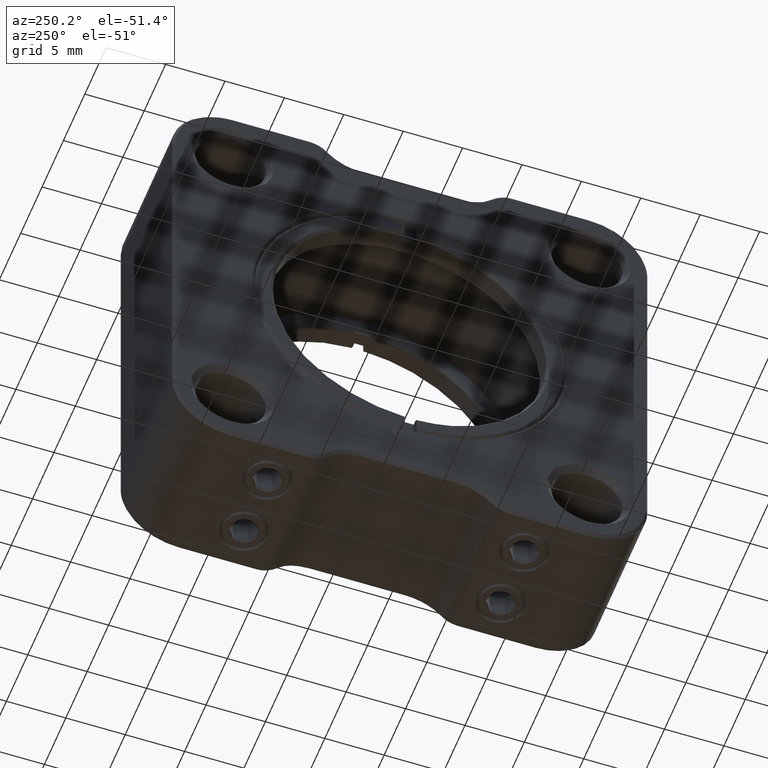
[diagram: clean part render]
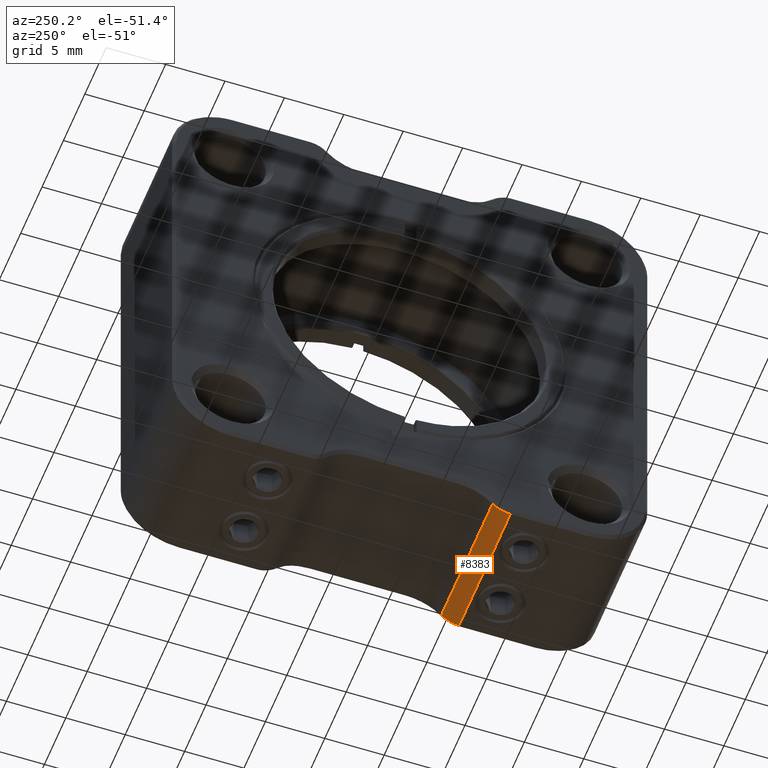
[diagram: same view with one face highlighted and labeled with its STEP entity id]
A machine part, auxiliary view. The second image highlights one B-rep face of the part: STEP entity #8383.
In plain terms, the highlighted face is a freeform B-spline surface patch.
Its self-contained STEP definition (entity closure, byte-faithful):
#402 = CARTESIAN_POINT ( 'NONE',  ( -20.70960063692990261, -6.362834731590480075, 20.00000000000000000 ) ) ;
#598 = CARTESIAN_POINT ( 'NONE',  ( -20.70960063692990261, -6.362834731590480075, 20.00000000000000000 ) ) ;
#917 = CARTESIAN_POINT ( 'NONE',  ( -20.70960063692989550, -5.784935813814358951, 19.99999999999998579 ) ) ;
#1051 = CARTESIAN_POINT ( 'NONE',  ( -8.709600636929954121, -5.784935813814358951, 19.99999999999998579 ) ) ;
#1063 = CARTESIAN_POINT ( 'NONE',  ( -8.709600636929948791, -6.362834731590480075, 20.00000000000000000 ) ) ;
#1109 = CARTESIAN_POINT ( 'NONE',  ( -20.70960063692990261, -4.872122746590609843, 20.66666666666669627 ) ) ;
#1165 = CARTESIAN_POINT ( 'NONE',  ( -20.70960063692989550, -5.784935813814358063, 19.99999999999998579 ) ) ;
#1396 = CARTESIAN_POINT ( 'NONE',  ( -8.709600636929948791, -6.362834731590470305, 20.00000000000000000 ) ) ;
#1411 = VERTEX_POINT ( 'NONE', #8450 ) ;
#2242 = CARTESIAN_POINT ( 'NONE',  ( -8.709600636929948791, -4.872122746590620501, 20.66666666666669627 ) ) ;
#2367 = CARTESIAN_POINT ( 'NONE',  ( -8.709600636929948791, -4.872122746590620501, 20.66666666666669627 ) ) ;
#2709 = B_SPLINE_CURVE_WITH_KNOTS ( 'NONE', 1,
 ( #4670, #7407 ),
 .UNSPECIFIED., .F., .F.,
 ( 2, 2 ),
 ( 0.000000000000000000, 1.000000000000000000 ),
 .UNSPECIFIED. ) ;
#3660 = CARTESIAN_POINT ( 'NONE',  ( -20.70960063692990261, -4.872122746590620501, 20.66666666666669627 ) ) ;
#3791 = CARTESIAN_POINT ( 'NONE',  ( -8.709600636929948791, -6.362834731590480075, 20.00000000000000000 ) ) ;
#3821 = EDGE_CURVE ( 'NONE', #1411, #6076, #6874, .T. ) ;
#3854 = FACE_OUTER_BOUND ( 'NONE', #9078, .T. ) ;
#4670 = CARTESIAN_POINT ( 'NONE',  ( -20.70960063692990261, -4.872122746590620501, 20.66666666666669627 ) ) ;
#5214 = CARTESIAN_POINT ( 'NONE',  ( -20.70960063692990261, -6.362834731590470305, 20.00000000000000000 ) ) ;
#5252 = ORIENTED_EDGE ( 'NONE', *, *, #8374, .T. ) ;
#5870 =( BOUNDED_CURVE ( )  B_SPLINE_CURVE ( 3, ( #6352, #917, #7122, #3660 ),
 .UNSPECIFIED., .F., .T. ) 
 B_SPLINE_CURVE_WITH_KNOTS ( ( 4, 4 ),
 ( 0.000000000000000000, 1.000000000000000000 ),
 .UNSPECIFIED. ) 
 CURVE ( )  GEOMETRIC_REPRESENTATION_ITEM ( )  RATIONAL_B_SPLINE_CURVE ( ( 1.000000000000000000, 0.9419139527835180825, 0.9419139527835180825, 1.000000000000000000 ) ) 
 REPRESENTATION_ITEM ( '' )  );
#5878 = CARTESIAN_POINT ( 'NONE',  ( -8.709600636929954121, -5.257388691774693257, 20.23592624524297889 ) ) ;
#6076 = VERTEX_POINT ( 'NONE', #598 ) ;
#6352 = CARTESIAN_POINT ( 'NONE',  ( -20.70960063692990261, -6.362834731590480075, 20.00000000000000000 ) ) ;
#6514 = CARTESIAN_POINT ( 'NONE',  ( -20.70960063692990261, -4.872122746590620501, 20.66666666666669627 ) ) ;
#6677 = ORIENTED_EDGE ( 'NONE', *, *, #3821, .T. ) ;
#6691 =( BOUNDED_SURFACE ( )  B_SPLINE_SURFACE ( 3, 1, ( 
 ( #8338, #1109 ),
 ( #7492, #11144 ),
 ( #9347, #1165 ),
 ( #1396, #5214 ) ),
 .UNSPECIFIED., .F., .F., .F. ) 
 B_SPLINE_SURFACE_WITH_KNOTS ( ( 4, 4 ),
 ( 2, 2 ),
 ( 0.000000000000000000, 1.000000000000000000 ),
 ( 0.000000000000000000, 1.000000000000000000 ),
 .UNSPECIFIED. ) 
 GEOMETRIC_REPRESENTATION_ITEM ( )  RATIONAL_B_SPLINE_SURFACE ( (
 ( 1.000000000000000000, 1.000000000000000000),
 ( 0.9419139527835180825, 0.9419139527835180825),
 ( 0.9419139527835180825, 0.9419139527835180825),
 ( 1.000000000000000000, 1.000000000000000000) ) ) 
 REPRESENTATION_ITEM ( '' )  SURFACE ( )  );
#6720 = EDGE_CURVE ( 'NONE', #6076, #8984, #5870, .T. ) ;
#6874 = B_SPLINE_CURVE_WITH_KNOTS ( 'NONE', 1,
 ( #1063, #402 ),
 .UNSPECIFIED., .F., .F.,
 ( 2, 2 ),
 ( 0.000000000000000000, 1.000000000000000000 ),
 .UNSPECIFIED. ) ;
#6998 =( BOUNDED_CURVE ( )  B_SPLINE_CURVE ( 3, ( #2242, #5878, #1051, #3791 ),
 .UNSPECIFIED., .F., .F. ) 
 B_SPLINE_CURVE_WITH_KNOTS ( ( 4, 4 ),
 ( 0.000000000000000000, 1.000000000000000000 ),
 .UNSPECIFIED. ) 
 CURVE ( )  GEOMETRIC_REPRESENTATION_ITEM ( )  RATIONAL_B_SPLINE_CURVE ( ( 1.000000000000000000, 0.9419139527835180825, 0.9419139527835180825, 1.000000000000000000 ) ) 
 REPRESENTATION_ITEM ( '' )  );
#7122 = CARTESIAN_POINT ( 'NONE',  ( -20.70960063692989550, -5.257388691774693257, 20.23592624524297889 ) ) ;
#7301 = ORIENTED_EDGE ( 'NONE', *, *, #6720, .T. ) ;
#7407 = CARTESIAN_POINT ( 'NONE',  ( -8.709600636929948791, -4.872122746590620501, 20.66666666666669627 ) ) ;
#7492 = CARTESIAN_POINT ( 'NONE',  ( -8.709600636929954121, -5.257388691774693257, 20.23592624524297889 ) ) ;
#7499 = VERTEX_POINT ( 'NONE', #2367 ) ;
#8338 = CARTESIAN_POINT ( 'NONE',  ( -8.709600636929948791, -4.872122746590609843, 20.66666666666669627 ) ) ;
#8374 = EDGE_CURVE ( 'NONE', #7499, #1411, #6998, .T. ) ;
#8383 = ADVANCED_FACE ( 'NONE', ( #3854 ), #6691, .T. ) ;
#8450 = CARTESIAN_POINT ( 'NONE',  ( -8.709600636929948791, -6.362834731590480075, 20.00000000000000000 ) ) ;
#8728 = ORIENTED_EDGE ( 'NONE', *, *, #8950, .T. ) ;
#8950 = EDGE_CURVE ( 'NONE', #8984, #7499, #2709, .T. ) ;
#8984 = VERTEX_POINT ( 'NONE', #6514 ) ;
#9078 = EDGE_LOOP ( 'NONE', ( #8728, #5252, #6677, #7301 ) ) ;
#9347 = CARTESIAN_POINT ( 'NONE',  ( -8.709600636929954121, -5.784935813814358063, 19.99999999999998579 ) ) ;
#11144 = CARTESIAN_POINT ( 'NONE',  ( -20.70960063692989550, -5.257388691774693257, 20.23592624524297889 ) ) ;